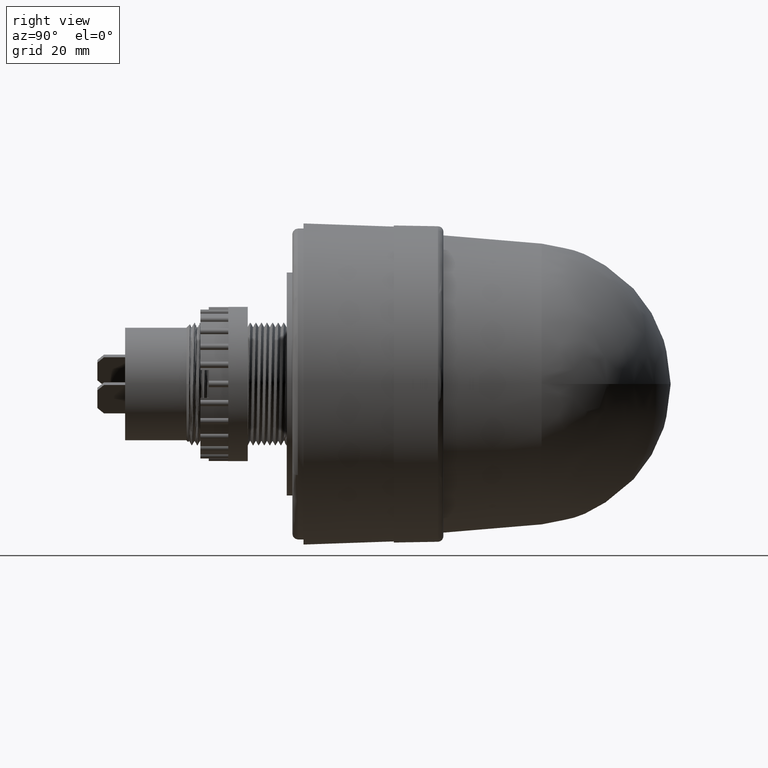
[diagram: clean part render]
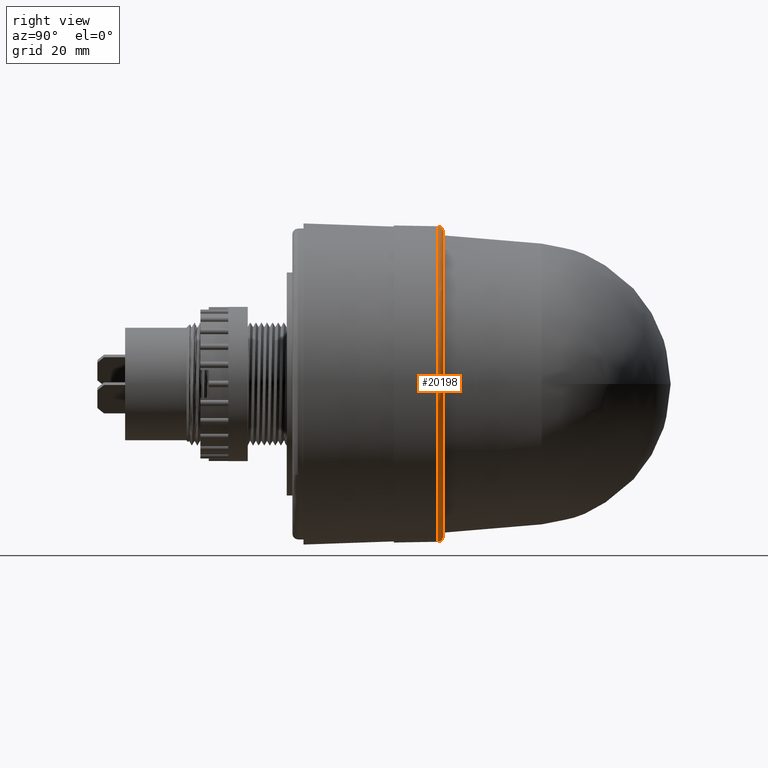
[diagram: same view with one face highlighted and labeled with its STEP entity id]
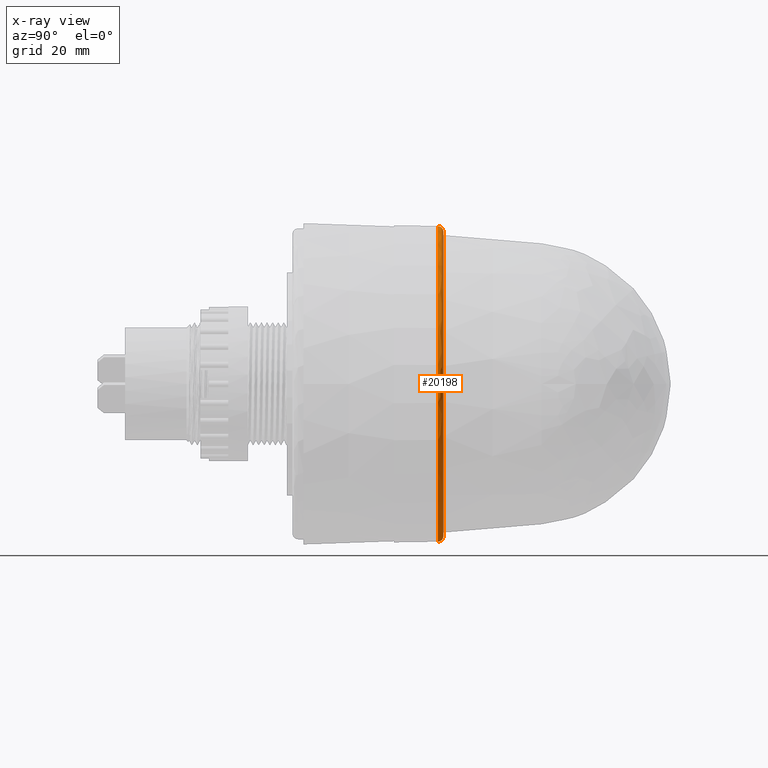
[diagram: x-ray of the same camera — body ghosted, the highlighted face saturated]
A machine part, right view. The second image highlights one B-rep face of the part: STEP entity #20198.
The next image is the same camera in x-ray: the body ghosted, the highlighted face saturated — about 0% of this face is hidden behind the body in this view.
In plain terms, the highlighted face is a freeform B-spline surface patch.
Its self-contained STEP definition (entity closure, byte-faithful):
#5 = CARTESIAN_POINT ( 'NONE',  ( 1.341377262241592900E-016, 0.3503937007874015600, 1.075273726733196000 ) ) ;
#173 = CARTESIAN_POINT ( 'NONE',  ( 0.0000000000000000000, 0.3344518249152417200, -1.114240861838224200 ) ) ;
#663 = DIRECTION ( 'NONE',  ( 1.224646799147353200E-016, 0.0000000000000000000, 1.000000000000000000 ) ) ;
#1383 = CARTESIAN_POINT ( 'NONE',  ( 0.9993758555378642300, 0.3503937007874015600, 0.3968156115739053200 ) ) ;
#1441 = ORIENTED_EDGE ( 'NONE', *, *, #4917, .T. ) ;
#1465 = CARTESIAN_POINT ( 'NONE',  ( 1.073775869353691600, 0.3503937007874015600, -0.06563688027665831600 ) ) ;
#1549 = CARTESIAN_POINT ( 'NONE',  ( 1.005304874167807000, 0.3503937007874015600, -0.3815888631560585000 ) ) ;
#1591 = CARTESIAN_POINT ( 'NONE',  ( 0.1945887271749828800, 0.3503937007874014500, 1.057520664764043400 ) ) ;
#1634 = CARTESIAN_POINT ( 'NONE',  ( 0.8593876256093528900, 0.3503937007874015100, -0.6505212804463548200 ) ) ;
#1666 = CARTESIAN_POINT ( 'NONE',  ( 0.5615991623130126600, 0.3503937007874015100, 0.9170441403073594800 ) ) ;
#1718 = CARTESIAN_POINT ( 'NONE',  ( 0.4251852061468937000, 0.3503937007874015600, -0.9877151162915296400 ) ) ;
#1754 = CARTESIAN_POINT ( 'NONE',  ( 0.8974541539282171500, 0.3503937007874015100, 0.5922794871208075800 ) ) ;
#1801 = CARTESIAN_POINT ( 'NONE',  ( 0.1978031827788818700, 0.3503937007874014500, -1.056924131793163900 ) ) ;
#2039 = CARTESIAN_POINT ( 'NONE',  ( 2.228481723676448000, 0.3344518249152417200, 1.114240861838224000 ) ) ;
#2706 = VERTEX_POINT ( 'NONE', #11312 ) ;
#2758 = ORIENTED_EDGE ( 'NONE', *, *, #11282, .T. ) ;
#3120 = ORIENTED_EDGE ( 'NONE', *, *, #10146, .F. ) ;
#3223 = CARTESIAN_POINT ( 'NONE',  ( 1.029430375647439900, 0.3503937007874015600, 0.3140544398384931800 ) ) ;
#3293 = CARTESIAN_POINT ( 'NONE',  ( 1.066483393726484400, 0.3503937007874015100, -0.1389573075316402600 ) ) ;
#3371 = CARTESIAN_POINT ( 'NONE',  ( 1.001373785499021700, 0.3503937007874014000, -0.3917464873969706600 ) ) ;
#3407 = CARTESIAN_POINT ( 'NONE',  ( 0.2806741894942013600, 0.3503937007874014500, 1.039027982957080500 ) ) ;
#3455 = CARTESIAN_POINT ( 'NONE',  ( 0.7340937993234590800, 0.3503937007874015600, -0.7865739229751651500 ) ) ;
#3493 = CARTESIAN_POINT ( 'NONE',  ( 0.5807788995625841100, 0.3503937007874015100, 0.9049392252565688900 ) ) ;
#3534 = CARTESIAN_POINT ( 'NONE',  ( 0.4031829292674510800, 0.3503937007874015600, -0.9968281498438852400 ) ) ;
#3575 = CARTESIAN_POINT ( 'NONE',  ( 0.9198799495387145500, 0.3503937007874015100, 0.5579926982225748000 ) ) ;
#3621 = CARTESIAN_POINT ( 'NONE',  ( 0.1310029545135118800, 0.3503937007874015600, -1.069288683142923600 ) ) ;
#3864 = CARTESIAN_POINT ( 'NONE',  ( 0.0000000000000000000, 0.3503937007874016200, -1.098018291092870200 ) ) ;
#4917 = EDGE_CURVE ( 'NONE', #2706, #13615, #15077, .T. ) ;
#5044 = CARTESIAN_POINT ( 'NONE',  ( 1.051413693778720600, 0.3503937007874015600, 0.2255670339495513300 ) ) ;
#5120 = CARTESIAN_POINT ( 'NONE',  ( 1.059857992582950100, 0.3503937007874015600, -0.1815071905128369800 ) ) ;
#5198 = CARTESIAN_POINT ( 'NONE',  ( 1.000194812910767400, 0.3503937007874014500, -0.3947469650284563000 ) ) ;
#5231 = CARTESIAN_POINT ( 'NONE',  ( 0.3673244874289345300, 0.3503937007874015100, 1.010655227869092600 ) ) ;
#5274 = CARTESIAN_POINT ( 'NONE',  ( 0.6417183746944427100, 0.3503937007874015100, -0.8631522198378526200 ) ) ;
#5310 = CARTESIAN_POINT ( 'NONE',  ( 0.5864589892765387200, 0.3503937007874014500, 0.9012683968882560000 ) ) ;
#5351 = CARTESIAN_POINT ( 'NONE',  ( 0.3979137227577277900, 0.3503937007874016700, -0.9989391847887544300 ) ) ;
#5384 = CARTESIAN_POINT ( 'NONE',  ( 0.9749421319196208700, 0.3503937007874015600, 0.4541977074895284800 ) ) ;
#5432 = CARTESIAN_POINT ( 'NONE',  ( -1.365923996832131600E-016, 0.3503937007874015600, -1.075273726733196000 ) ) ;
#5672 = CARTESIAN_POINT ( 'NONE',  ( 2.196036582185740400, 0.3503937007874017300, 1.098018291092870200 ) ) ;
#6843 = CARTESIAN_POINT ( 'NONE',  ( 1.055911761883736400, 0.3503937007874015600, 0.2031560979128984600 ) ) ;
#6918 = CARTESIAN_POINT ( 'NONE',  ( 1.058062937858429000, 0.3503937007874015100, -0.1916178967000386800 ) ) ;
#6955 = CARTESIAN_POINT ( 'NONE',  ( 0.08199324526569780300, 0.3503937007874016700, 1.073030931602704000 ) ) ;
#7001 = CARTESIAN_POINT ( 'NONE',  ( 0.9639033695889262000, 0.3503937007874014500, -0.4789911690501953400 ) ) ;
#7036 = CARTESIAN_POINT ( 'NONE',  ( 0.3887020502413451300, 0.3503937007874014500, 1.002563101475928400 ) ) ;
#7078 = CARTESIAN_POINT ( 'NONE',  ( 0.6019279816428891900, 0.3503937007874015100, -0.8910305691677490300 ) ) ;
#7118 = CARTESIAN_POINT ( 'NONE',  ( 0.7078521854632106000, 0.3503937007874015100, 0.8128124327686606600 ) ) ;
#7165 = CARTESIAN_POINT ( 'NONE',  ( 0.3633852442989198300, 0.3503937007874015600, -1.012611364147534300 ) ) ;
#7349 = AXIS2_PLACEMENT_3D ( 'NONE', #20409, #9838, #22191 ) ;
#7468 = CARTESIAN_POINT ( 'NONE',  ( 0.0000000000000000000, 0.3503937007874016700, -1.075273726733196000 ) ) ;
#8303 = CARTESIAN_POINT ( 'NONE',  ( 0.0000000000000000000, 0.3117107246628851900, 0.0000000000000000000 ) ) ;
#8619 = CARTESIAN_POINT ( 'NONE',  ( 1.056924131793139000, 0.3503937007874015100, 0.1978031827789597200 ) ) ;
#8698 = CARTESIAN_POINT ( 'NONE',  ( 1.057520664764052700, 0.3503937007874015100, -0.1945887271749721900 ) ) ;
#8738 = CARTESIAN_POINT ( 'NONE',  ( 0.1673311674331657300, 0.3503937007874016700, 1.062231475036678400 ) ) ;
#8782 = CARTESIAN_POINT ( 'NONE',  ( 0.9170441403077832500, 0.3503937007874015100, -0.5615991623122712500 ) ) ;
#8817 = CARTESIAN_POINT ( 'NONE',  ( 0.3937752073683681300, 0.3503937007874015100, 1.000577736950599300 ) ) ;
#8857 = CARTESIAN_POINT ( 'NONE',  ( 0.5922794871208848500, 0.3503937007874015600, -0.8974541539281687400 ) ) ;
#8894 = CARTESIAN_POINT ( 'NONE',  ( 0.8237125997039243000, 0.3503937007874016700, 0.6929225068391744500 ) ) ;
#8939 = CARTESIAN_POINT ( 'NONE',  ( 0.2552684071566812000, 0.3503937007874015600, -1.044795440306380200 ) ) ;
#9184 = CARTESIAN_POINT ( 'NONE',  ( 2.229275618439335600, 0.3117107246628851900, -1.114637809219668300 ) ) ;
#9263 = CARTESIAN_POINT ( 'NONE',  ( 2.150547453466391500, 0.3503937007874016700, 1.075273726733195800 ) ) ;
#9798 = AXIS2_PLACEMENT_3D ( 'NONE', #22037, #11454, #663 ) ;
#9838 = DIRECTION ( 'NONE',  ( 1.000000000000000000, 0.0000000000000000000, 0.0000000000000000000 ) ) ;
#10063 = CARTESIAN_POINT ( 'NONE',  ( -1.365923996832131600E-016, 0.3503937007874015600, -1.075273726733196000 ) ) ;
#10103 = DIRECTION ( 'NONE',  ( 0.0000000000000000000, 0.0000000000000000000, -1.000000000000000000 ) ) ;
#10146 = EDGE_CURVE ( 'NONE', #2706, #13861, #17663, .T. ) ;
#10349 = CARTESIAN_POINT ( 'NONE',  ( 0.9968281498438277300, 0.3503937007874015100, 0.4031829292675455600 ) ) ;
#10423 = CARTESIAN_POINT ( 'NONE',  ( 1.069292514391145400, 0.3503937007874015100, 0.1309822531738399400 ) ) ;
#10501 = CARTESIAN_POINT ( 'NONE',  ( 1.039027982956580500, 0.3503937007874015100, -0.2806741894947422100 ) ) ;
#10530 = CARTESIAN_POINT ( 'NONE',  ( 0.1885833457917280600, 0.3503937007874015100, 1.058611059840047300 ) ) ;
#10577 = CARTESIAN_POINT ( 'NONE',  ( 0.9049392252567011200, 0.3503937007874014500, -0.5807788995623524000 ) ) ;
#10610 = CARTESIAN_POINT ( 'NONE',  ( 0.4295819337555374900, 0.3503937007874015100, 0.9864047282136359000 ) ) ;
#10654 = CARTESIAN_POINT ( 'NONE',  ( 0.5579926982221270500, 0.3503937007874015600, -0.9198799495389864400 ) ) ;
#10691 = CARTESIAN_POINT ( 'NONE',  ( 0.8818998208934221200, 0.3503937007874015600, 0.6153235692255130100 ) ) ;
#10738 = CARTESIAN_POINT ( 'NONE',  ( 0.2106392581274611500, 0.3503937007874015100, -1.054456750801245000 ) ) ;
#10983 = CARTESIAN_POINT ( 'NONE',  ( 1.365037625269484600E-016, 0.3117107246628851900, 1.114637809219668000 ) ) ;
#11282 = EDGE_CURVE ( 'NONE', #13615, #18026, #22544, .T. ) ;
#11312 = CARTESIAN_POINT ( 'NONE',  ( 1.368369234596027800E-016, 0.3117107246628851900, 1.114637809219668000 ) ) ;
#11454 = DIRECTION ( 'NONE',  ( -1.000000000000000000, 0.0000000000000000000, 1.224646799147353200E-016 ) ) ;
#11989 = CARTESIAN_POINT ( 'NONE',  ( 0.0000000000000000000, 0.3117107246628851900, -1.114637809219668000 ) ) ;
#12142 = CARTESIAN_POINT ( 'NONE',  ( 0.9989391847887374400, 0.3503937007874015600, 0.3979137227577554900 ) ) ;
#12206 = CARTESIAN_POINT ( 'NONE',  ( 1.075272449784363100, 0.3503937007874016700, -0.03288111167109375500 ) ) ;
#12283 = CARTESIAN_POINT ( 'NONE',  ( 1.010655227868874100, 0.3503937007874015600, -0.3673244874291714000 ) ) ;
#12320 = CARTESIAN_POINT ( 'NONE',  ( 0.1936385546377631900, 0.3503937007874014500, 1.057694992112214700 ) ) ;
#12348 = EDGE_LOOP ( 'NONE', ( #3120, #1441, #2758, #19306 ) ) ;
#12363 = CARTESIAN_POINT ( 'NONE',  ( 0.9012683968882122500, 0.3503937007874015600, -0.5864589892765983400 ) ) ;
#12394 = CARTESIAN_POINT ( 'NONE',  ( 0.5344306091790674800, 0.3503937007874015100, 0.9333764407042882700 ) ) ;
#12430 = CARTESIAN_POINT ( 'NONE',  ( 0.4541977074889402800, 0.3503937007874015600, -0.9749421319199783600 ) ) ;
#12460 = CARTESIAN_POINT ( 'NONE',  ( 0.8948916643741808800, 0.3503937007874015100, 0.5961445473537891900 ) ) ;
#12509 = CARTESIAN_POINT ( 'NONE',  ( 0.1999448994696464400, 0.3503937007874015100, -1.056521084327385600 ) ) ;
#12600 = CARTESIAN_POINT ( 'NONE',  ( 0.0000000000000000000, 0.3117107246628851900, -1.114637809219668000 ) ) ;
#12748 = CARTESIAN_POINT ( 'NONE',  ( 2.228481723676448000, 0.3344518249152417200, -1.114240861838224200 ) ) ;
#12866 = B_SPLINE_CURVE_WITH_KNOTS ( 'NONE', 3,
 ( #21041, #14030, #6955, #19334, #8738, #21120, #10530, #22900, #12320, #1591, #14113, #3407, #15890, #5231, #17673, #7036, #19413, #8817, #21194, #10610, #22977, #12394, #1666, #14189, #3493, #15973, #5310, #17749, #7118, #19491, #8894, #21270, #10691, #23052, #12460, #1754, #14263, #3575, #16044, #5384, #17822, #20932, #10349, #22697, #12142, #1383, #13917, #3223, #15696, #5044, #17471, #6843, #19224, #8619, #21013, #10423, #22775, #12206, #1465, #13992, #3293, #15775, #5120, #17552, #6918, #19303, #8698, #21092, #10501, #22859, #12283, #1549, #14075, #3371, #15851, #5198, #17638, #7001, #19371, #8782, #21162, #10577, #22947, #12363, #1634, #14153, #3455, #15932, #5274, #17716, #7078, #19455, #8857, #21240, #10654, #23023, #12430, #1718, #14230, #3534, #16017, #5351, #17793, #7165, #19537, #8939, #21313, #10738, #23094, #12509, #1801, #14312, #3621, #16084, #5432 ),
 .UNSPECIFIED., .F., .F.,
 ( 4, 1, 1, 1, 1, 1, 2, 2, 1, 1, 1, 1, 1, 2, 2, 1, 1, 1, 1, 2, 2, 2, 1, 1, 1, 1, 2, 2, 1, 1, 1, 1, 1, 2, 2, 1, 1, 1, 1, 1, 2, 2, 2, 2, 1, 1, 1, 1, 2, 2, 1, 1, 1, 1, 1, 2, 2, 1, 1, 1, 1, 2, 2, 2, 1, 1, 1, 1, 2, 2, 1, 1, 1, 1, 1, 2, 2, 1, 1, 1, 1, 1, 2, 2, 4 ),
 ( 0.7500000000000000000, 0.7656250000000020000, 0.7734375000000028900, 0.7773437500000034400, 0.7792968750000036600, 0.7802734375000037700, 0.7807617187500037700, 0.7812500000000038900, 0.7968750000000055500, 0.8046875000000063300, 0.8085937500000067700, 0.8105468750000069900, 0.8115234375000071100, 0.8120117187500071100, 0.8125000000000071100, 0.8281250000000082200, 0.8359375000000086600, 0.8398437500000088800, 0.8417968750000091000, 0.8427734375000091000, 0.8437500000000091000, 0.8750000000000109900, 0.8906250000000118800, 0.8984375000000123200, 0.9023437500000125500, 0.9042968750000126600, 0.9052734375000127700, 0.9062500000000128800, 0.9218750000000139900, 0.9296875000000146500, 0.9335937500000148800, 0.9355468750000151000, 0.9365234375000151000, 0.9370117187500151000, 0.9375000000000151000, 0.9531250000000149900, 0.9609375000000149900, 0.9648437500000149900, 0.9667968750000148800, 0.9677734375000148800, 0.9682617187500148800, 0.9687500000000148800, 1.000000000000014700, 1.015625000000014700, 1.023437500000014700, 1.027343750000014700, 1.029296875000014700, 1.030273437500014700, 1.030761718750014700, 1.031250000000014700, 1.046875000000014200, 1.054687500000014000, 1.058593750000014000, 1.060546875000013800, 1.061523437500013800, 1.062011718750013800, 1.062500000000013800, 1.078125000000012700, 1.085937500000012200, 1.089843750000012000, 1.091796875000011800, 1.092773437500011800, 1.093750000000011500, 1.125000000000009100, 1.140625000000008000, 1.148437500000007300, 1.152343750000007100, 1.154296875000006900, 1.155273437500006900, 1.156250000000006900, 1.171875000000006200, 1.179687500000006000, 1.183593750000005800, 1.185546875000005800, 1.186523437500005600, 1.187011718750005600, 1.187500000000005600, 1.203125000000004200, 1.210937500000003600, 1.214843750000003300, 1.216796875000003100, 1.217773437500003100, 1.218261718750003100, 1.218750000000002900, 1.250000000000000000 ),
 .UNSPECIFIED. ) ;
#13615 = VERTEX_POINT ( 'NONE', #11989 ) ;
#13861 = VERTEX_POINT ( 'NONE', #5 ) ;
#13917 = CARTESIAN_POINT ( 'NONE',  ( 1.012611364147125500, 0.3503937007874015600, 0.3633852443001835400 ) ) ;
#13992 = CARTESIAN_POINT ( 'NONE',  ( 1.069288044673903900, 0.3503937007874015600, -0.1145519026503965800 ) ) ;
#14030 = CARTESIAN_POINT ( 'NONE',  ( 0.03287756233075907200, 0.3503937007874016700, 1.075274365138568100 ) ) ;
#14075 = CARTESIAN_POINT ( 'NONE',  ( 1.002563101475868500, 0.3503937007874016700, -0.3887020502414104700 ) ) ;
#14113 = CARTESIAN_POINT ( 'NONE',  ( 0.2299436837340662900, 0.3503937007874015100, 1.050978852014189600 ) ) ;
#14153 = CARTESIAN_POINT ( 'NONE',  ( 0.8128124327673989000, 0.3503937007874015600, -0.7078521854639940900 ) ) ;
#14189 = CARTESIAN_POINT ( 'NONE',  ( 0.5750456471475742200, 0.3503937007874015100, 0.9086107811201222800 ) ) ;
#14230 = CARTESIAN_POINT ( 'NONE',  ( 0.4105401549770660300, 0.3503937007874015600, -0.9938349200622725900 ) ) ;
#14263 = CARTESIAN_POINT ( 'NONE',  ( 0.8987567409238060900, 0.3503937007874015600, 0.5903007441149837900 ) ) ;
#14312 = CARTESIAN_POINT ( 'NONE',  ( 0.1966703572290405000, 0.3503937007874014500, -1.057135455277658800 ) ) ;
#14554 = CARTESIAN_POINT ( 'NONE',  ( 1.364551504929369600E-016, 0.3344518249152417200, 1.114240861838224200 ) ) ;
#15077 = CIRCLE ( 'NONE', #20814, 1.114637809219668000 ) ;
#15696 = CARTESIAN_POINT ( 'NONE',  ( 1.044795440305843000, 0.3503937007874015600, 0.2552684071583397600 ) ) ;
#15775 = CARTESIAN_POINT ( 'NONE',  ( 1.062230008391323200, 0.3503937007874015600, -0.1673390938582454100 ) ) ;
#15851 = CARTESIAN_POINT ( 'NONE',  ( 1.000577736950581100, 0.3503937007874015100, -0.3937752073683872300 ) ) ;
#15890 = CARTESIAN_POINT ( 'NONE',  ( 0.3386437297502617500, 0.3503937007874015100, 1.020823168540141000 ) ) ;
#15932 = CARTESIAN_POINT ( 'NONE',  ( 0.6929225068402765600, 0.3503937007874015100, -0.8237125997032402900 ) ) ;
#15973 = CARTESIAN_POINT ( 'NONE',  ( 0.5845945063281901000, 0.3503937007874015600, 0.9024787971099730300 ) ) ;
#16017 = CARTESIAN_POINT ( 'NONE',  ( 0.4000223967937514600, 0.3503937007874015100, -0.9980966757280569400 ) ) ;
#16044 = CARTESIAN_POINT ( 'NONE',  ( 0.9472626558561344500, 0.3503937007874015100, 0.5111123061833813300 ) ) ;
#16084 = CARTESIAN_POINT ( 'NONE',  ( 0.06575512466173441500, 0.3503937007874015600, -1.075272449922451300 ) ) ;
#16321 = CARTESIAN_POINT ( 'NONE',  ( 2.196036582185740400, 0.3503937007874017300, -1.098018291092870400 ) ) ;
#16836 =( BOUNDED_SURFACE ( )  B_SPLINE_SURFACE ( 3, 3, ( 
 ( #12600, #9184, #21557, #10983 ),
 ( #173, #12748, #2039, #14554 ),
 ( #3864, #16321, #5672, #18105 ),
 ( #7468, #19845, #9263, #21630 ) ),
 .UNSPECIFIED., .F., .F., .T. ) 
 B_SPLINE_SURFACE_WITH_KNOTS ( ( 4, 4 ),
 ( 4, 4 ),
 ( 0.0000000000000000000, 1.000000000000000000 ),
 ( 0.0000000000000000000, 1.000000000000000000 ),
 .UNSPECIFIED. ) 
 GEOMETRIC_REPRESENTATION_ITEM ( )  RATIONAL_B_SPLINE_SURFACE ( (
 ( 1.000000000000000000, 0.3333333333333334300, 0.3333333333333334300, 1.000000000000000000),
 ( 0.8088336327694541900, 0.2696112109231514900, 0.2696112109231514900, 0.8088336327694541900),
 ( 0.8088336327694541900, 0.2696112109231514900, 0.2696112109231514900, 0.8088336327694541900),
 ( 1.000000000000000000, 0.3333333333333334300, 0.3333333333333334300, 1.000000000000000000) ) ) 
 REPRESENTATION_ITEM ( '' )  SURFACE ( )  );
#16969 = EDGE_CURVE ( 'NONE', #13861, #18026, #12866, .T. ) ;
#17471 = CARTESIAN_POINT ( 'NONE',  ( 1.054456750801078000, 0.3503937007874016700, 0.2106392581279790100 ) ) ;
#17552 = CARTESIAN_POINT ( 'NONE',  ( 1.058610653893565100, 0.3503937007874015600, -0.1885855397129547800 ) ) ;
#17638 = CARTESIAN_POINT ( 'NONE',  ( 0.9864047282141902300, 0.3503937007874015100, -0.4295819337545679900 ) ) ;
#17663 = CIRCLE ( 'NONE', #9798, 0.03937007874015751400 ) ;
#17673 = CARTESIAN_POINT ( 'NONE',  ( 0.3815888631559314300, 0.3503937007874015100, 1.005304874167924200 ) ) ;
#17716 = CARTESIAN_POINT ( 'NONE',  ( 0.6153235692259955100, 0.3503937007874015100, -0.8818998208931226900 ) ) ;
#17749 = CARTESIAN_POINT ( 'NONE',  ( 0.6505212804482067800, 0.3503937007874014500, 0.8593876256079794300 ) ) ;
#17793 = CARTESIAN_POINT ( 'NONE',  ( 0.3968156115739451800, 0.3503937007874015100, -0.9993758555378508000 ) ) ;
#17822 = CARTESIAN_POINT ( 'NONE',  ( 0.9877151162913214700, 0.3503937007874015600, 0.4251852061472367600 ) ) ;
#18026 = VERTEX_POINT ( 'NONE', #10063 ) ;
#18105 = CARTESIAN_POINT ( 'NONE',  ( 1.344684585592130300E-016, 0.3503937007874016200, 1.098018291092870200 ) ) ;
#19224 = CARTESIAN_POINT ( 'NONE',  ( 1.056521084327335600, 0.3503937007874015100, 0.1999448994698008200 ) ) ;
#19303 = CARTESIAN_POINT ( 'NONE',  ( 1.057694873321424600, 0.3503937007874015600, -0.1936391966377526700 ) ) ;
#19306 = ORIENTED_EDGE ( 'NONE', *, *, #16969, .F. ) ;
#19334 = CARTESIAN_POINT ( 'NONE',  ( 0.1389437193743594800, 0.3503937007874015600, 1.066485907975664300 ) ) ;
#19371 = CARTESIAN_POINT ( 'NONE',  ( 0.9333764407050153500, 0.3503937007874015600, -0.5344306091777952800 ) ) ;
#19413 = CARTESIAN_POINT ( 'NONE',  ( 0.3917464873969328000, 0.3503937007874015100, 1.001373785499056800 ) ) ;
#19455 = CARTESIAN_POINT ( 'NONE',  ( 0.5961445473539405100, 0.3503937007874015600, -0.8948916643740869600 ) ) ;
#19491 = CARTESIAN_POINT ( 'NONE',  ( 0.7865739229755550600, 0.3503937007874015100, 0.7340937993228295900 ) ) ;
#19537 = CARTESIAN_POINT ( 'NONE',  ( 0.3140544398362814000, 0.3503937007874015600, -1.029430375648155800 ) ) ;
#19845 = CARTESIAN_POINT ( 'NONE',  ( 2.150547453466391500, 0.3503937007874016700, -1.075273726733195800 ) ) ;
#20198 = ADVANCED_FACE ( 'NONE', ( #22535 ), #16836, .T. ) ;
#20409 = CARTESIAN_POINT ( 'NONE',  ( 0.0000000000000000000, 0.3110236220472441500, -1.075273726733196000 ) ) ;
#20697 = DIRECTION ( 'NONE',  ( -0.0000000000000000000, 1.000000000000000000, -0.0000000000000000000 ) ) ;
#20814 = AXIS2_PLACEMENT_3D ( 'NONE', #8303, #20697, #10103 ) ;
#20932 = CARTESIAN_POINT ( 'NONE',  ( 0.9938349200621609000, 0.3503937007874015600, 0.4105401549772496600 ) ) ;
#21013 = CARTESIAN_POINT ( 'NONE',  ( 1.057135395414406000, 0.3503937007874015100, 0.1966706806874723700 ) ) ;
#21041 = CARTESIAN_POINT ( 'NONE',  ( 1.341377262241592900E-016, 0.3503937007874015600, 1.075273726733196000 ) ) ;
#21092 = CARTESIAN_POINT ( 'NONE',  ( 1.050978852013903800, 0.3503937007874015600, -0.2299436837343749000 ) ) ;
#21120 = CARTESIAN_POINT ( 'NONE',  ( 0.1815029442136876500, 0.3503937007874015600, 1.059858778285818400 ) ) ;
#21162 = CARTESIAN_POINT ( 'NONE',  ( 0.9086107811203488800, 0.3503937007874016700, -0.5750456471471778700 ) ) ;
#21194 = CARTESIAN_POINT ( 'NONE',  ( 0.3947469650284261600, 0.3503937007874015100, 1.000194812910785200 ) ) ;
#21240 = CARTESIAN_POINT ( 'NONE',  ( 0.5903007441150115400, 0.3503937007874015600, -0.8987567409237891000 ) ) ;
#21270 = CARTESIAN_POINT ( 'NONE',  ( 0.8631522198383653200, 0.3503937007874014500, 0.6417183746936157000 ) ) ;
#21313 = CARTESIAN_POINT ( 'NONE',  ( 0.2255670339485842100, 0.3503937007874015600, -1.051413693779033000 ) ) ;
#21557 = CARTESIAN_POINT ( 'NONE',  ( 2.229275618439335600, 0.3117107246628851900, 1.114637809219667800 ) ) ;
#21630 = CARTESIAN_POINT ( 'NONE',  ( 1.316830527651054300E-016, 0.3503937007874016700, 1.075273726733196000 ) ) ;
#22037 = CARTESIAN_POINT ( 'NONE',  ( 1.316830527651054300E-016, 0.3110236220472441500, 1.075273726733196000 ) ) ;
#22191 = DIRECTION ( 'NONE',  ( 0.0000000000000000000, 0.0000000000000000000, -1.000000000000000000 ) ) ;
#22535 = FACE_OUTER_BOUND ( 'NONE', #12348, .T. ) ;
#22544 = CIRCLE ( 'NONE', #7349, 0.03937007874015751400 ) ;
#22697 = CARTESIAN_POINT ( 'NONE',  ( 0.9980966757280240700, 0.3503937007874015100, 0.4000223967938061300 ) ) ;
#22775 = CARTESIAN_POINT ( 'NONE',  ( 1.075276280630861600, 0.3503937007874015100, 0.06576222334218795300 ) ) ;
#22859 = CARTESIAN_POINT ( 'NONE',  ( 1.020823168539765700, 0.3503937007874015600, -0.3386437297506679200 ) ) ;
#22900 = CARTESIAN_POINT ( 'NONE',  ( 0.1916166278654126100, 0.3503937007874015100, 1.058063172633928900 ) ) ;
#22947 = CARTESIAN_POINT ( 'NONE',  ( 0.9024787971100402000, 0.3503937007874015100, -0.5845945063280723100 ) ) ;
#22977 = CARTESIAN_POINT ( 'NONE',  ( 0.4789911690518921000, 0.3503937007874015100, 0.9639033695879568600 ) ) ;
#23023 = CARTESIAN_POINT ( 'NONE',  ( 0.5111123061825971800, 0.3503937007874015100, -0.9472626558566111800 ) ) ;
#23052 = CARTESIAN_POINT ( 'NONE',  ( 0.8910305691679089000, 0.3503937007874015100, 0.6019279816426309500 ) ) ;
#23094 = CARTESIAN_POINT ( 'NONE',  ( 0.2031560979126311200, 0.3503937007874015100, -1.055911761883823000 ) ) ;